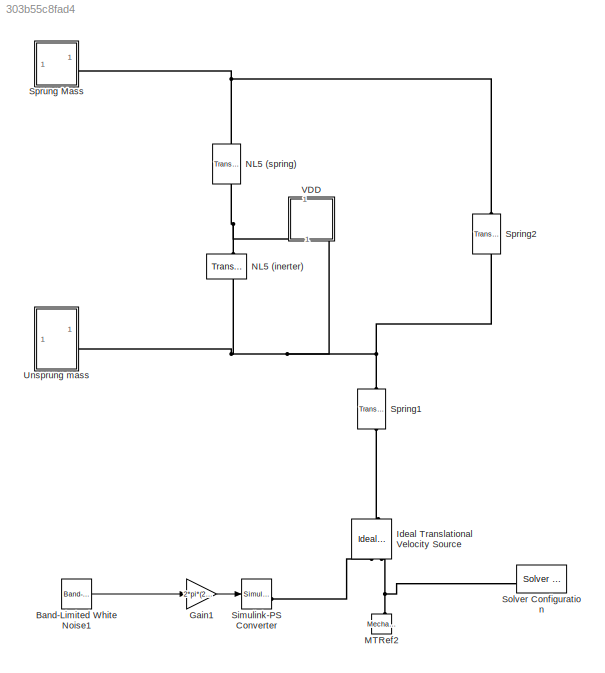
MODEL slx_303b55c8fad4
KIND model
CONFIG AbsTol = 1e-6
CONFIG EnableMultiTasking = off
CONFIG FixedStep = 0.0001
CONFIG MaxStep = 1e-2
CONFIG MinStep = 1e-12
CONFIG RelTol = 1e-6
CONFIG SampleTimeConstraint = Unconstrained
CONFIG SolverName = FixedStepAuto
CONFIG StartTime = 0.0
CONFIG StopTime = 100
BLOCK [Reference] Band-Limited White Noise1  REF=simulink/Sources/Band-Limited
White Noise
  SourceBlock = simulink/Sources/Band-Limited\nWhite Noise
  SourceType = Band-Limited White Noise.
BLOCK [Gain] Gain1
  Gain = 2*pi*(25*5e-7)^0.5
BLOCK [Reference] Ideal Translational Velocity Source  REF=fl_lib/Mechanical/Mechanical Sources/Ideal Translational
Velocity Source
  NameLocation = right
  SourceBlock = fl_lib/Mechanical/Mechanical Sources/Ideal Translational\nVelocity Source
  SourceType = Ideal Translational\nVelocity Source
BLOCK [Reference] MTRef2  REF=fl_lib/Mechanical/Translational
Elements/Mechanical
Translational
Reference
  NameLocation = right
  SourceBlock = fl_lib/Mechanical/Translational\nElements/Mechanical\nTranslational\nReference
  SourceType = Mechanical\nTranslational\nReference
BLOCK [Reference] NL5 (inerter)  REF=fl_lib/Mechanical/Translational
Elements/Translational
Inerter
  NameLocation = left
  SourceBlock = fl_lib/Mechanical/Translational\nElements/Translational\nInerter
  SourceType = Translational\nInerter
BLOCK [Reference] NL5 (spring)  REF=fl_lib/Mechanical/Translational
Elements/Translational Spring
  NameLocation = left
  SourceBlock = fl_lib/Mechanical/Translational\nElements/Translational Spring
  SourceType = Translational Spring
BLOCK [Reference] Simulink-PS Converter  REF=nesl_utility/Simulink-PS
Converter
  SourceBlock = nesl_utility/Simulink-PS\nConverter
  SourceType = Simulink-PS\nConverter
BLOCK [Reference] Solver Configuration  REF=nesl_utility/Solver
Configuration
  SourceBlock = nesl_utility/Solver\nConfiguration
  SourceType = Solver\nConfiguration
BLOCK [Reference] Spring1  REF=fl_lib/Mechanical/Translational
Elements/Translational Spring
  AttributesFormatString = x0 = %<x> %<x_unit>
  NameLocation = right
  SourceBlock = fl_lib/Mechanical/Translational\nElements/Translational Spring
  SourceType = Translational Spring
BLOCK [Reference] Spring2  REF=fl_lib/Mechanical/Translational
Elements/Translational Spring
  AttributesFormatString = x0 = %<x> %<x_unit>
  NameLocation = right
  SourceBlock = fl_lib/Mechanical/Translational\nElements/Translational Spring
  SourceType = Translational Spring
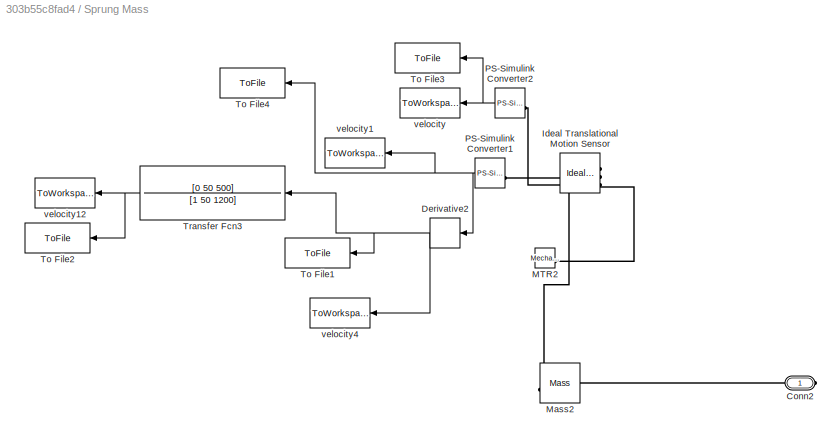
BLOCK [SubSystem] Sprung Mass
BLOCK [PMIOPort] Sprung Mass/Conn2
  Side = Right
BLOCK [Derivative] Sprung Mass/Derivative2
  NameLocation = top
BLOCK [Reference] Sprung Mass/Ideal Translational Motion Sensor  REF=fl_lib/Mechanical/Mechanical Sensors/Ideal Translational
Motion Sensor
  NameLocation = top
  SourceBlock = fl_lib/Mechanical/Mechanical Sensors/Ideal Translational\nMotion Sensor
  SourceType = Ideal Translational\nMotion Sensor
BLOCK [Reference] Sprung Mass/MTR2  REF=fl_lib/Mechanical/Translational
Elements/Mechanical
Translational
Reference
  SourceBlock = fl_lib/Mechanical/Translational\nElements/Mechanical\nTranslational\nReference
  SourceType = Mechanical\nTranslational\nReference
BLOCK [Reference] Sprung Mass/Mass2  REF=fl_lib/Mechanical/Translational
Elements/Mass
  NameLocation = top
  SourceBlock = fl_lib/Mechanical/Translational\nElements/Mass
  SourceType = Mass
BLOCK [Reference] Sprung Mass/PS-Simulink Converter1  REF=nesl_utility/PS-Simulink
Converter
  NameLocation = top
  SourceBlock = nesl_utility/PS-Simulink\nConverter
  SourceType = PS-Simulink\nConverter
BLOCK [Reference] Sprung Mass/PS-Simulink Converter2  REF=nesl_utility/PS-Simulink
Converter
  NameLocation = top
  SourceBlock = nesl_utility/PS-Simulink\nConverter
  SourceType = PS-Simulink\nConverter
BLOCK [ToFile] Sprung Mass/To File1
  Filename = NL5_a.mat
  MatrixName = Ms_acc
  NameLocation = top
  SaveFormat = Timeseries
BLOCK [ToFile] Sprung Mass/To File2
  Filename = NL5_H.mat
  MatrixName = H2631
  NameLocation = top
  SaveFormat = Timeseries
BLOCK [ToFile] Sprung Mass/To File3
  Filename = NL5_Ms_d.mat
  MatrixName = Ms_d
  NameLocation = top
  SaveFormat = Timeseries
BLOCK [ToFile] Sprung Mass/To File4
  Filename = NL5_Ms_v.mat
  MatrixName = Ms_v
  NameLocation = top
  SaveFormat = Timeseries
BLOCK [TransferFcn] Sprung Mass/Transfer Fcn3
  Denominator = [1 50 1200]
  Numerator = [0 50 500]
BLOCK [ToWorkspace] Sprung Mass/velocity
  FixptAsFi = on
  MaxDataPoints = inf
  NameLocation = top
  SampleTime = -1
  VariableName = Z2X
BLOCK [ToWorkspace] Sprung Mass/velocity1
  FixptAsFi = on
  MaxDataPoints = inf
  NameLocation = top
  SampleTime = -1
  VariableName = Z2V
BLOCK [ToWorkspace] Sprung Mass/velocity12
  FixptAsFi = on
  MaxDataPoints = inf
  NameLocation = top
  SampleTime = -1
  VariableName = Z2A2631
BLOCK [ToWorkspace] Sprung Mass/velocity4
  FixptAsFi = on
  MaxDataPoints = inf
  NameLocation = top
  SampleTime = -1
  VariableName = Z2A
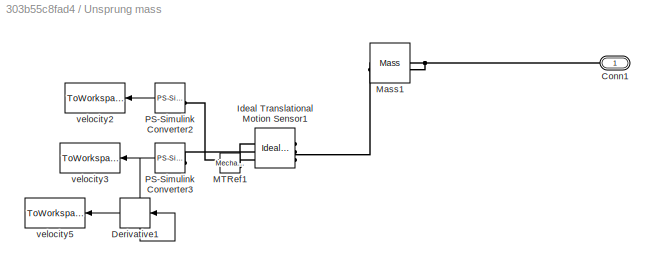
BLOCK [SubSystem] Unsprung mass
BLOCK [PMIOPort] Unsprung mass/Conn1
  Side = Right
BLOCK [Derivative] Unsprung mass/Derivative1
  NameLocation = top
BLOCK [Reference] Unsprung mass/Ideal Translational Motion Sensor1  REF=fl_lib/Mechanical/Mechanical Sensors/Ideal Translational
Motion Sensor
  NameLocation = top
  SourceBlock = fl_lib/Mechanical/Mechanical Sensors/Ideal Translational\nMotion Sensor
  SourceType = Ideal Translational\nMotion Sensor
BLOCK [Reference] Unsprung mass/MTRef1  REF=fl_lib/Mechanical/Translational
Elements/Mechanical
Translational
Reference
  SourceBlock = fl_lib/Mechanical/Translational\nElements/Mechanical\nTranslational\nReference
  SourceType = Mechanical\nTranslational\nReference
BLOCK [Reference] Unsprung mass/Mass1  REF=fl_lib/Mechanical/Translational
Elements/Mass
  NameLocation = top
  SourceBlock = fl_lib/Mechanical/Translational\nElements/Mass
  SourceType = Mass
BLOCK [Reference] Unsprung mass/PS-Simulink Converter2  REF=nesl_utility/PS-Simulink
Converter
  NameLocation = top
  SourceBlock = nesl_utility/PS-Simulink\nConverter
  SourceType = PS-Simulink\nConverter
BLOCK [Reference] Unsprung mass/PS-Simulink Converter3  REF=nesl_utility/PS-Simulink
Converter
  NameLocation = top
  SourceBlock = nesl_utility/PS-Simulink\nConverter
  SourceType = PS-Simulink\nConverter
BLOCK [ToWorkspace] Unsprung mass/velocity2
  FixptAsFi = on
  MaxDataPoints = inf
  NameLocation = top
  SampleTime = -1
  VariableName = Z1X
BLOCK [ToWorkspace] Unsprung mass/velocity3
  FixptAsFi = on
  MaxDataPoints = inf
  NameLocation = top
  SampleTime = -1
  VariableName = Z1V
BLOCK [ToWorkspace] Unsprung mass/velocity5
  FixptAsFi = on
  MaxDataPoints = inf
  NameLocation = top
  SampleTime = -1
  VariableName = Z1A
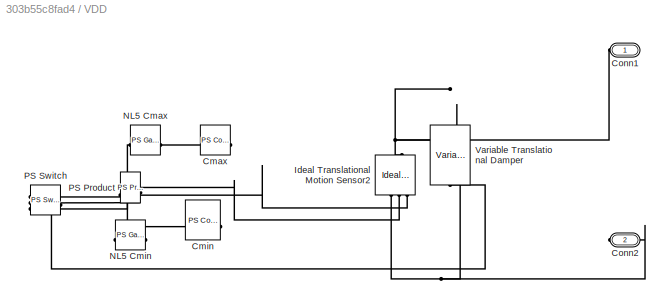
BLOCK [SubSystem] VDD
  NameLocation = left
  PortSchema = {"entries":[{"content":{"sides":[{"content":{},"type":"ConnectorPlacement.EquallySpacedRectSide","uuid":"9724223e-2e00-4efa-9c90-65a8840def9a"},{"content":{"side":"RIGHT"},"type":"ConnectorPlacement.EquallySpacedRectSide","uuid":"480fb7b4-f908-4bbb-9a93-3e28f8f05141"},{"content":{"side":"TOP"},"type":"ConnectorPlacement.EquallySpacedRectSide","uuid":"f0a62251-636a-47ad-9a6a-2c781138785e"},{"conten...<+337ch>
BLOCK [Reference] VDD/Cmax  REF=fl_lib/Physical Signals/Sources/PS Constant
  NameLocation = top
  SourceBlock = fl_lib/Physical Signals/Sources/PS Constant
  SourceType = PS Constant
BLOCK [Reference] VDD/Cmin  REF=fl_lib/Physical Signals/Sources/PS Constant
  SourceBlock = fl_lib/Physical Signals/Sources/PS Constant
  SourceType = PS Constant
BLOCK [PMIOPort] VDD/Conn1
  Side = Right
BLOCK [PMIOPort] VDD/Conn2
  Port = 2
  Side = Right
BLOCK [Reference] VDD/Ideal Translational Motion Sensor2  REF=fl_lib/Mechanical/Mechanical Sensors/Ideal Translational
Motion Sensor
  NameLocation = left
  SourceBlock = fl_lib/Mechanical/Mechanical Sensors/Ideal Translational\nMotion Sensor
  SourceType = Ideal Translational\nMotion Sensor
BLOCK [Reference] VDD/NL5 Cmax  REF=fl_lib/Physical Signals/Functions/PS Gain
  NameLocation = top
  SourceBlock = fl_lib/Physical Signals/Functions/PS Gain
  SourceType = PS Gain
BLOCK [Reference] VDD/NL5 Cmin  REF=fl_lib/Physical Signals/Functions/PS Gain
  NameLocation = top
  SourceBlock = fl_lib/Physical Signals/Functions/PS Gain
  SourceType = PS Gain
BLOCK [Reference] VDD/PS Product  REF=fl_lib/Physical Signals/Functions/PS Product
  NameLocation = top
  SourceBlock = fl_lib/Physical Signals/Functions/PS Product
  SourceType = PS Product
BLOCK [Reference] VDD/PS Switch  REF=fl_lib/Physical Signals/Nonlinear Operators/PS Switch
  NameLocation = top
  SourceBlock = fl_lib/Physical Signals/Nonlinear Operators/PS Switch
  SourceType = PS Switch
BLOCK [Reference] VDD/Variable Translational Damper  REF=sdl_lib/Couplings & Drives/Springs & Dampers/Variable
Translational Damper
  NameLocation = right
  SourceBlock = sdl_lib/Couplings & Drives/Springs & Dampers/Variable\nTranslational Damper
  SourceType = Variable\nTranslational Damper
LINE Band-Limited White Noise1:1 -> Gain1:1
LINE Gain1:1 -> Simulink-PS Converter:1
NET Sprung Mass/Derivative2:1 -> Sprung Mass/To File1:1, Sprung Mass/Transfer Fcn3:1, Sprung Mass/velocity4:1
NET Sprung Mass/PS-Simulink Converter1:1 -> Sprung Mass/Derivative2:1, Sprung Mass/To File4:1, Sprung Mass/velocity1:1
NET Sprung Mass/PS-Simulink Converter2:1 -> Sprung Mass/To File3:1, Sprung Mass/velocity:1
NET Sprung Mass/Transfer Fcn3:1 -> Sprung Mass/To File2:1, Sprung Mass/velocity12:1
LINE Unsprung mass/Derivative1:1 -> Unsprung mass/velocity5:1
LINE Unsprung mass/PS-Simulink Converter2:1 -> Unsprung mass/velocity2:1
NET Unsprung mass/PS-Simulink Converter3:1 -> Unsprung mass/Derivative1:1, Unsprung mass/velocity3:1
PLINE Ideal Translational Velocity Source:LConn1 -- Spring1:RConn1
PLINE Ideal Translational Velocity Source:RConn1 -- Simulink-PS Converter:RConn1
PNET net1: Ideal Translational Velocity Source:RConn2 -- MTRef2:LConn1 -- Solver Configuration:RConn1
PNET net2: NL5 (inerter):LConn1 -- NL5 (spring):RConn1 -- VDD:RConn1
PNET net3: NL5 (inerter):RConn1 -- Spring1:LConn1 -- Spring2:RConn1 -- Unsprung mass:RConn1 -- VDD:RConn2
PNET net4: NL5 (spring):LConn1 -- Spring2:LConn1 -- Sprung Mass:RConn1
PNET net5: Sprung Mass/Conn2:RConn1 -- Sprung Mass/Ideal Translational Motion Sensor:LConn1 -- Sprung Mass/Mass2:LConn1
PLINE Sprung Mass/Ideal Translational Motion Sensor:RConn1 -- Sprung Mass/MTR2:LConn1
PLINE Sprung Mass/Ideal Translational Motion Sensor:RConn2 -- Sprung Mass/PS-Simulink Converter1:LConn1
PLINE Sprung Mass/Ideal Translational Motion Sensor:RConn3 -- Sprung Mass/PS-Simulink Converter2:LConn1
PNET net6: Unsprung mass/Conn1:RConn1 -- Unsprung mass/Ideal Translational Motion Sensor1:LConn1 -- Unsprung mass/Mass1:LConn1
PLINE Unsprung mass/Ideal Translational Motion Sensor1:RConn1 -- Unsprung mass/MTRef1:LConn1
PLINE Unsprung mass/Ideal Translational Motion Sensor1:RConn2 -- Unsprung mass/PS-Simulink Converter3:LConn1
PLINE Unsprung mass/Ideal Translational Motion Sensor1:RConn3 -- Unsprung mass/PS-Simulink Converter2:LConn1
PLINE VDD/Cmax:RConn1 -- VDD/NL5 Cmax:LConn1
PLINE VDD/Cmin:RConn1 -- VDD/NL5 Cmin:LConn1
PNET net7: VDD/Conn1:RConn1 -- VDD/Ideal Translational Motion Sensor2:LConn1 -- VDD/Variable Translational Damper:RConn1
PNET net8: VDD/Conn2:RConn1 -- VDD/Ideal Translational Motion Sensor2:RConn1 -- VDD/Variable Translational Damper:LConn2
PLINE VDD/Ideal Translational Motion Sensor2:RConn2 -- VDD/PS Product:LConn1
PLINE VDD/Ideal Translational Motion Sensor2:RConn3 -- VDD/PS Product:LConn2
PLINE VDD/NL5 Cmax:RConn1 -- VDD/PS Switch:LConn3
PLINE VDD/NL5 Cmin:RConn1 -- VDD/PS Switch:LConn1
PLINE VDD/PS Product:RConn1 -- VDD/PS Switch:LConn2
PLINE VDD/PS Switch:RConn1 -- VDD/Variable Translational Damper:LConn1
note: NET lines group one-source signal fan-out (src -> all destinations, sorted); 1:1 wires keep LINE; PNET lines group multi-terminal physical nets as a canonical sorted terminal list (undirected conserving connections); 2-terminal nets keep the pairwise PLINE form
